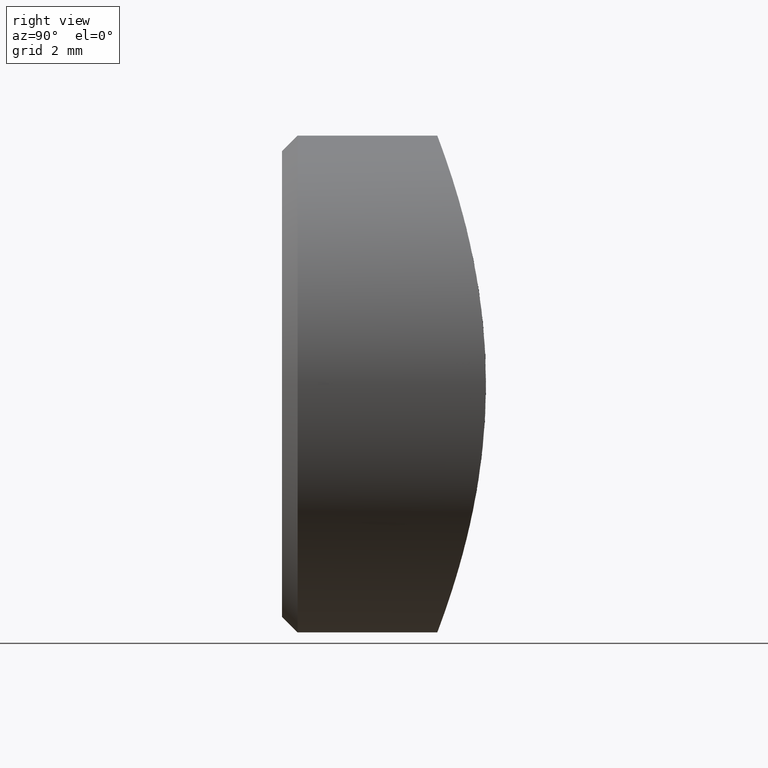
[diagram: clean part render]
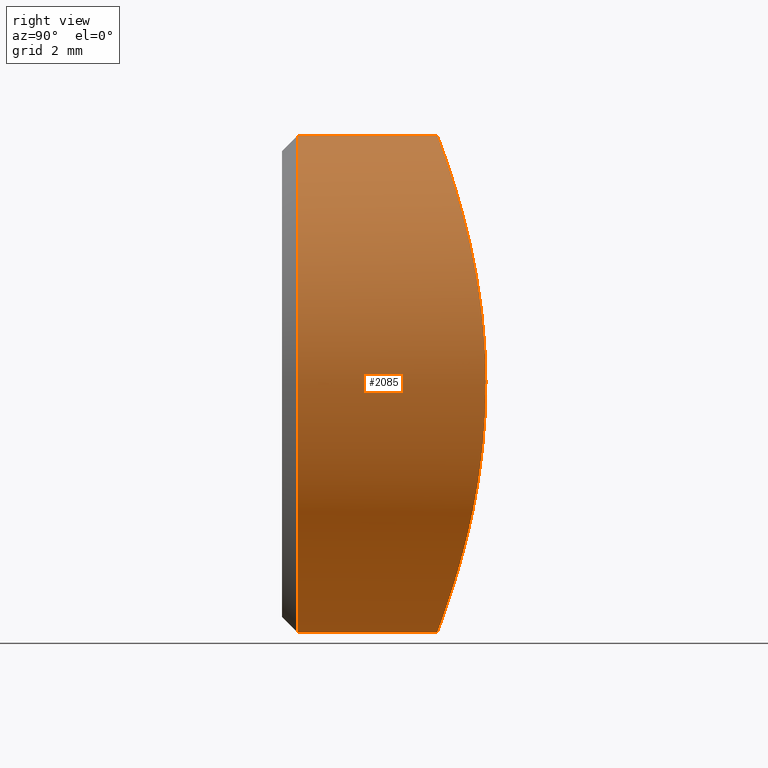
[diagram: same view with one face highlighted and labeled with its STEP entity id]
A machine part, right view. The second image highlights one B-rep face of the part: STEP entity #2085.
In plain terms, the highlighted cylindrical surface (bore or boss wall) has radius 8 mm, axis along (-0, -1, -0).
Its self-contained STEP definition (entity closure, byte-faithful):
#42 = CARTESIAN_POINT ( 'NONE',  ( -5.471947518298327928, 5.717469754782087854, -5.841669855936454603 ) ) ;
#131 = CARTESIAN_POINT ( 'NONE',  ( -4.019131361349429277, 5.379799926310373515, -6.936521342487770525 ) ) ;
#510 = DIRECTION ( 'NONE',  ( 0.000000000000000000, 0.000000000000000000, -1.000000000000000000 ) ) ;
#705 = CARTESIAN_POINT ( 'NONE',  ( 7.587914031988930219, 6.403270892843958784, 2.588894941886093370 ) ) ;
#746 = CARTESIAN_POINT ( 'NONE',  ( -1.049801174281111749, 5.024370405436703990, 7.935229644027003815 ) ) ;
#789 = CARTESIAN_POINT ( 'NONE',  ( 7.740670532928318082, 6.463374660759110490, 2.087624345647435042 ) ) ;
#866 = CARTESIAN_POINT ( 'NONE',  ( 0.002708335507323259873, 4.995111466233082886, 8.012927036125606861 ) ) ;
#1002 = CARTESIAN_POINT ( 'NONE',  ( -1.057376813885606115, 5.020143630933811885, -7.947037112781933921 ) ) ;
#1040 = CARTESIAN_POINT ( 'NONE',  ( -4.665340713526976657, 5.518531652013448863, -6.503982036825616930 ) ) ;
#1085 = CARTESIAN_POINT ( 'NONE',  ( 1.246832498358330099E-15, 5.000000000000000888, -8.000000000000000000 ) ) ;
#1277 = FACE_OUTER_BOUND ( 'NONE', #3512, .T. ) ;
#1473 = VERTEX_POINT ( 'NONE', #3555 ) ;
#1571 = CYLINDRICAL_SURFACE ( 'NONE', #7286, 8.000000000000000000 ) ;
#1660 = CARTESIAN_POINT ( 'NONE',  ( 5.289170678200467712, 5.666867097962753341, 6.024426515788944947 ) ) ;
#1701 = CARTESIAN_POINT ( 'NONE',  ( 3.554352590122454192, 5.298762781456218818, 7.171844883690544847 ) ) ;
#1828 = CARTESIAN_POINT ( 'NONE',  ( -0.5233955155464954379, 5.004825351840747061, 7.987240395986130892 ) ) ;
#1873 = CARTESIAN_POINT ( 'NONE',  ( -7.948068961608548477, 6.545973234791842899, -1.053060681145296051 ) ) ;
#1914 = CARTESIAN_POINT ( 'NONE',  ( -7.170764763285529142, 6.249125915223545213, -3.556484973093882562 ) ) ;
#2000 = CARTESIAN_POINT ( 'NONE',  ( -4.243097550372779914, 5.427790208927884663, 6.787007380796168832 ) ) ;
#2043 = CARTESIAN_POINT ( 'NONE',  ( -7.999846470075006266, 6.567311531973184735, -0.5296391970087547252 ) ) ;
#2085 = ADVANCED_FACE ( 'NONE', ( #1277, #11863 ), #1571, .T. ) ;
#2605 = CARTESIAN_POINT ( 'NONE',  ( 4.242147281910840562, 5.427589989188357222, 6.787627049505394083 ) ) ;
#2646 = CARTESIAN_POINT ( 'NONE',  ( 7.183268770184786156, 6.252912783823964205, -3.559674719447241120 ) ) ;
#2693 = CARTESIAN_POINT ( 'NONE',  ( 5.477004757607989660, 5.718830227495868890, -5.836879274041997689 ) ) ;
#2732 = CARTESIAN_POINT ( 'NONE',  ( 6.346805666809565594, 5.971603146276694751, 4.877102246928880724 ) ) ;
#2776 = CARTESIAN_POINT ( 'NONE',  ( -2.593418853257765111, 5.153549271274931343, 7.586083449563225223 ) ) ;
#2817 = CARTESIAN_POINT ( 'NONE',  ( -7.946700934037629338, 6.545424481665144789, 1.060978647405207642 ) ) ;
#2861 = CARTESIAN_POINT ( 'NONE',  ( -7.282848922320297902, 6.289912223573335126, -3.320871278130283155 ) ) ;
#2892 = CARTESIAN_POINT ( 'NONE',  ( -7.739838232737580093, 6.463047381320082607, 2.090606504423534240 ) ) ;
#3512 = EDGE_LOOP ( 'NONE', ( #10274 ) ) ;
#3550 = CARTESIAN_POINT ( 'NONE',  ( -3.557478729552168595, 5.299292489793700156, 7.170304679228583389 ) ) ;
#3555 = CARTESIAN_POINT ( 'NONE',  ( 0.000000000000000000, 5.000000000000000888, -8.000000000000000000 ) ) ;
#3640 = CARTESIAN_POINT ( 'NONE',  ( 7.726537169543099104, 6.457977586271328896, -2.090428715184009523 ) ) ;
#3681 = CARTESIAN_POINT ( 'NONE',  ( 5.839409913531714125, 5.819187696004055610, 5.474354043041673279 ) ) ;
#3691 = ORIENTED_EDGE ( 'NONE', *, *, #9368, .T. ) ;
#3724 = CARTESIAN_POINT ( 'NONE',  ( -2.092658154046792784, 5.097124652193950389, 7.739553678955542360 ) ) ;
#3808 = CARTESIAN_POINT ( 'NONE',  ( -4.889511439851939478, 5.566847463736319668, 6.353114347735414391 ) ) ;
#3848 = CARTESIAN_POINT ( 'NONE',  ( -5.289902162564143140, 5.666997166409677433, 6.024181415992583943 ) ) ;
#3895 = CARTESIAN_POINT ( 'NONE',  ( -8.000152854738695751, 6.567436379112867151, 0.5249909757280022404 ) ) ;
#3984 = VERTEX_POINT ( 'NONE', #9194 ) ;
#4516 = CARTESIAN_POINT ( 'NONE',  ( 7.483653766154033882, 6.364518257250721511, -2.839469121433531029 ) ) ;
#4561 = CARTESIAN_POINT ( 'NONE',  ( 1.057863989960128981, 5.020120501165034277, -7.947104956248412400 ) ) ;
#4600 = CARTESIAN_POINT ( 'NONE',  ( 7.999616096595612902, 6.567217658287193949, -0.5331558006900823932 ) ) ;
#4645 = CARTESIAN_POINT ( 'NONE',  ( 4.890256824876026975, 5.566999416916629251, 6.352650335502245227 ) ) ;
#4726 = CARTESIAN_POINT ( 'NONE',  ( -2.582534745200886217, 5.156370184323448846, -7.576241631137764720 ) ) ;
#4775 = CARTESIAN_POINT ( 'NONE',  ( -6.924108717032225968, 6.162188202511733159, 4.015592442816005025 ) ) ;
#4812 = CARTESIAN_POINT ( 'NONE',  ( -1.826500185600155701, 5.077263731769817490, -7.793090415337271537 ) ) ;
#4895 = CARTESIAN_POINT ( 'NONE',  ( -5.277804704357709653, 5.666417356685755635, -6.017724130955573791 ) ) ;
#5463 = CARTESIAN_POINT ( 'NONE',  ( 0.5282184145178102641, 5.004952397851687884, 7.986903486188667856 ) ) ;
#5505 = CARTESIAN_POINT ( 'NONE',  ( 4.672224535631307241, 5.520073616662997118, -6.499097467223465152 ) ) ;
#5543 = CARTESIAN_POINT ( 'NONE',  ( 2.596980760270739097, 5.154048382262764072, 7.584675655422322471 ) ) ;
#5581 = CARTESIAN_POINT ( 'NONE',  ( 3.318550089879463094, 5.259934994315342394, 7.283895164522490973 ) ) ;
#5623 = CARTESIAN_POINT ( 'NONE',  ( 4.883360033972844683, 5.569060554875594704, -6.341969249837158706 ) ) ;
#5647 = CIRCLE ( 'NONE', #9422, 8.000000000000000000 ) ;
#5663 = CARTESIAN_POINT ( 'NONE',  ( -4.874022891345007658, 5.566843684937555103, -6.349183181187186165 ) ) ;
#5705 = CARTESIAN_POINT ( 'NONE',  ( -7.791840223846913993, 6.483753704050507771, -1.832323710539760064 ) ) ;
#6366 = CARTESIAN_POINT ( 'NONE',  ( 6.937978636682189837, 6.165060011664852624, -4.017352980255932238 ) ) ;
#6404 = CARTESIAN_POINT ( 'NONE',  ( 8.000379710101087838, 6.567528819219304204, 0.5215719460668236662 ) ) ;
#6441 = CARTESIAN_POINT ( 'NONE',  ( 7.947600105691978278, 6.545786025700839339, -1.055534364224028687 ) ) ;
#6529 = CARTESIAN_POINT ( 'NONE',  ( 6.354564512688106070, 5.972447559001751394, -4.888167589712390182 ) ) ;
#6660 = CARTESIAN_POINT ( 'NONE',  ( -2.832554385518804452, 5.188646632160033967, -7.486383931337958764 ) ) ;
#6699 = CARTESIAN_POINT ( 'NONE',  ( -7.171366734196467974, 6.249343812282718069, 3.555244486071662990 ) ) ;
#6734 = CARTESIAN_POINT ( 'NONE',  ( -7.587329852579183687, 6.403064907638555070, 2.589870515811186991 ) ) ;
#6892 = EDGE_CURVE ( 'NONE', #3984, #3984, #5647, .T. ) ;
#7068 = CARTESIAN_POINT ( 'NONE',  ( 0.000000000000000000, 12.00000000000000000, 0.000000000000000000 ) ) ;
#7286 = AXIS2_PLACEMENT_3D ( 'NONE', #7068, #8908, #510 ) ;
#7302 = CARTESIAN_POINT ( 'NONE',  ( 7.181815642022717938, 6.252357362761590487, 3.563753703747735369 ) ) ;
#7308 = CARTESIAN_POINT ( 'NONE',  ( 0.000000000000000000, 0.5000000000000038858, 0.000000000000000000 ) ) ;
#7335 = EDGE_LOOP ( 'NONE', ( #3691 ) ) ;
#7343 = CARTESIAN_POINT ( 'NONE',  ( 4.016441833377685455, 5.382619410698097795, 6.923653397572852697 ) ) ;
#7430 = CARTESIAN_POINT ( 'NONE',  ( 6.024766308394664982, 5.870568714565014723, -5.288587148533991922 ) ) ;
#7510 = CARTESIAN_POINT ( 'NONE',  ( -6.790161462787330571, 6.116257463235815095, 4.238002659787726500 ) ) ;
#7587 = CARTESIAN_POINT ( 'NONE',  ( -6.022468597644671462, 5.869852643241983969, -5.291421112088452006 ) ) ;
#7622 = CARTESIAN_POINT ( 'NONE',  ( -6.786908770510334143, 6.115148365006287001, -4.243320249564361824 ) ) ;
#8220 = CARTESIAN_POINT ( 'NONE',  ( 1.246832498358330099E-15, 5.000000000000000888, -8.000000000000000000 ) ) ;
#8266 = CARTESIAN_POINT ( 'NONE',  ( 2.084899951848678601, 5.101237042110374098, -7.728063809801367867 ) ) ;
#8308 = CARTESIAN_POINT ( 'NONE',  ( 4.022732067198237615, 5.380447266045621291, -6.934654044351272972 ) ) ;
#8349 = CARTESIAN_POINT ( 'NONE',  ( 2.839801452535267057, 5.189640149440823080, -7.483591383647665296 ) ) ;
#8392 = CARTESIAN_POINT ( 'NONE',  ( -1.314571903349922133, 5.039197977519668470, 7.895687306099843816 ) ) ;
#8437 = CARTESIAN_POINT ( 'NONE',  ( -7.726483602941184969, 6.457957063447504531, -2.090586408386803541 ) ) ;
#8478 = CARTESIAN_POINT ( 'NONE',  ( -7.285072458491116620, 6.290723955646026155, 3.316092605712493313 ) ) ;
#8568 = CARTESIAN_POINT ( 'NONE',  ( -4.019930523539353651, 5.383290655717780204, 6.921638728661010376 ) ) ;
#8908 = DIRECTION ( 'NONE',  ( -0.000000000000000000, -1.000000000000000000, -0.000000000000000000 ) ) ;
#9044 = DIRECTION ( 'NONE',  ( 0.000000000000000000, 0.000000000000000000, 1.000000000000000000 ) ) ;
#9192 = CARTESIAN_POINT ( 'NONE',  ( 6.934640652798353067, 6.163953341876426961, 4.022396422649731740 ) ) ;
#9194 = CARTESIAN_POINT ( 'NONE',  ( 0.000000000000000000, 0.5000000000000038858, 8.000000000000000000 ) ) ;
#9232 = CARTESIAN_POINT ( 'NONE',  ( 1.829899526875575111, 5.077546054656753682, -7.792326743230237440 ) ) ;
#9275 = CARTESIAN_POINT ( 'NONE',  ( 7.572433846019355208, 6.398356854438647545, -2.593745263756161545 ) ) ;
#9313 = CARTESIAN_POINT ( 'NONE',  ( 6.015549165441313129, 5.870633318223430486, 5.280268623602691669 ) ) ;
#9368 = EDGE_CURVE ( 'NONE', #1473, #1473, #11661, .T. ) ;
#9422 = AXIS2_PLACEMENT_3D ( 'NONE', #7308, #12020, #9044 ) ;
#9428 = CARTESIAN_POINT ( 'NONE',  ( -6.351137653802891414, 5.971390706768636925, -4.892304170921827122 ) ) ;
#9472 = CARTESIAN_POINT ( 'NONE',  ( -2.080262128454891446, 5.100797384585424865, -7.729258207646523715 ) ) ;
#10166 = CARTESIAN_POINT ( 'NONE',  ( 3.564983628642338864, 5.296180610071419714, -7.180901118691167540 ) ) ;
#10207 = CARTESIAN_POINT ( 'NONE',  ( 2.590155204408460143, 5.157288621009177731, -7.573696196353272292 ) ) ;
#10249 = CARTESIAN_POINT ( 'NONE',  ( 7.947242598539993708, 6.545644371771902392, 1.057114368380217106 ) ) ;
#10274 = ORIENTED_EDGE ( 'NONE', *, *, #6892, .T. ) ;
#10286 = CARTESIAN_POINT ( 'NONE',  ( -3.318830784653899801, 5.259964431044898525, 7.283816519234681763 ) ) ;
#10332 = CARTESIAN_POINT ( 'NONE',  ( -6.029561497851133822, 5.871899783861742605, 5.283768992482769100 ) ) ;
#10377 = CARTESIAN_POINT ( 'NONE',  ( -7.483755059323399905, 6.364554607914457485, -2.839275379970030322 ) ) ;
#10418 = CARTESIAN_POINT ( 'NONE',  ( -6.923065522502459324, 6.161826235704015886, -4.017414146606956393 ) ) ;
#10503 = CARTESIAN_POINT ( 'NONE',  ( -7.572577428721420034, 6.398412203532257259, -2.593293559061427001 ) ) ;
#11068 = CARTESIAN_POINT ( 'NONE',  ( 1.317400615505468942, 5.039366842606202823, 7.895236049593117755 ) ) ;
#11152 = CARTESIAN_POINT ( 'NONE',  ( 6.501648725235456006, 6.021009303705718629, 4.668596399855247547 ) ) ;
#11237 = CARTESIAN_POINT ( 'NONE',  ( 0.5338604161448098351, 5.000000000000000888, -8.000000000000000000 ) ) ;
#11316 = CARTESIAN_POINT ( 'NONE',  ( -6.358058911530728885, 5.973603514898719880, 4.882921647729438597 ) ) ;
#11364 = CARTESIAN_POINT ( 'NONE',  ( -0.5338604161448053942, 5.000000000000000888, -8.000000000000001776 ) ) ;
#11448 = CARTESIAN_POINT ( 'NONE',  ( -3.561652206488779449, 5.295551374392569954, -7.182747971165470702 ) ) ;
#11661 = B_SPLINE_CURVE_WITH_KNOTS ( 'NONE', 3,
 ( #8220, #11237, #4561, #9232, #8266, #10207, #8349, #10166, #8308, #5505, #5623, #12014, #2693, #7430, #6529, #6366, #2646, #4516, #9275, #3640, #12054, #6441, #4600, #6404, #10249, #789, #705, #7302, #9192, #11152, #2732, #9313, #3681, #1660, #4645, #2605, #7343, #1701, #5581, #5543, #12144, #11068, #12102, #5463, #866, #1828, #746, #8392, #3724, #2776, #10286, #3550, #8568, #2000, #3808, #3848, #10332, #11316, #7510, #4775, #6699, #8478, #6734, #2892, #2817, #3895, #2043, #1873, #5705, #8437, #10503, #10377, #2861, #1914, #10418, #7622, #9428, #7587, #42, #4895, #5663, #1040, #131, #11448, #6660, #4726, #9472, #4812, #1002, #11364, #1085 ),
 .UNSPECIFIED., .T., .F.,
 ( 4, 2, 2, 2, 2, 2, 2, 2, 2, 2, 2, 2, 2, 2, 2, 2, 2, 2, 2, 2, 2, 2, 1, 2, 2, 2, 2, 2, 2, 2, 2, 2, 2, 2, 2, 2, 2, 2, 2, 2, 2, 2, 2, 2, 2, 4 ),
 ( 0.000000000000000000, 0.001577825287749409300, 0.002366737931624114492, 0.003155650575498819468, 0.004733475863248230719, 0.005522388507122935261, 0.006311301150997639803, 0.007889126438747048886, 0.009466951726496459704, 0.01025586437037116425, 0.01104477701424587052, 0.01262260230199528308, 0.01420042758974469389, 0.01577825287749410124, 0.01735607816524351033, 0.01814499080911821660, 0.01893390345299292288, 0.02051172874074232502, 0.02130064138461703130, 0.02208955402849173758, 0.02366737931624113972, 0.02445629196011584253, 0.02524520460399054186, 0.02603411724786524467, 0.02682302989173995442, 0.02840085517948936003, 0.02918976782336405937, 0.02997868046723876218, 0.03155650575498816779, 0.03313433104273757340, 0.03392324368661227274, 0.03471215633048697208, 0.03628998161823637075, 0.03786780690598576249, 0.03944563219373516116, 0.04023454483760986744, 0.04102345748148455984, 0.04181237012535926612, 0.04260128276923395851, 0.04417910805698336413, 0.04496802070085805653, 0.04575693334473276280, 0.04733475863248215454, 0.04812367127635685388, 0.04891258392023155321, 0.05049040920798095189 ),
 .UNSPECIFIED. ) ;
#11863 = FACE_OUTER_BOUND ( 'NONE', #7335, .T. ) ;
#12014 = CARTESIAN_POINT ( 'NONE',  ( 5.285364833860085376, 5.668371078192832258, -6.011047975210182415 ) ) ;
#12020 = DIRECTION ( 'NONE',  ( -0.000000000000000000, 1.000000000000000000, -0.000000000000000000 ) ) ;
#12054 = CARTESIAN_POINT ( 'NONE',  ( 7.791955934262214889, 6.483800028519729253, -1.831678950315554388 ) ) ;
#12102 = CARTESIAN_POINT ( 'NONE',  ( 1.053428681918241905, 5.024557960626168551, 7.934729359167859819 ) ) ;
#12144 = CARTESIAN_POINT ( 'NONE',  ( 2.097192357331465473, 5.097546487897181677, 7.738408806625880487 ) ) ;